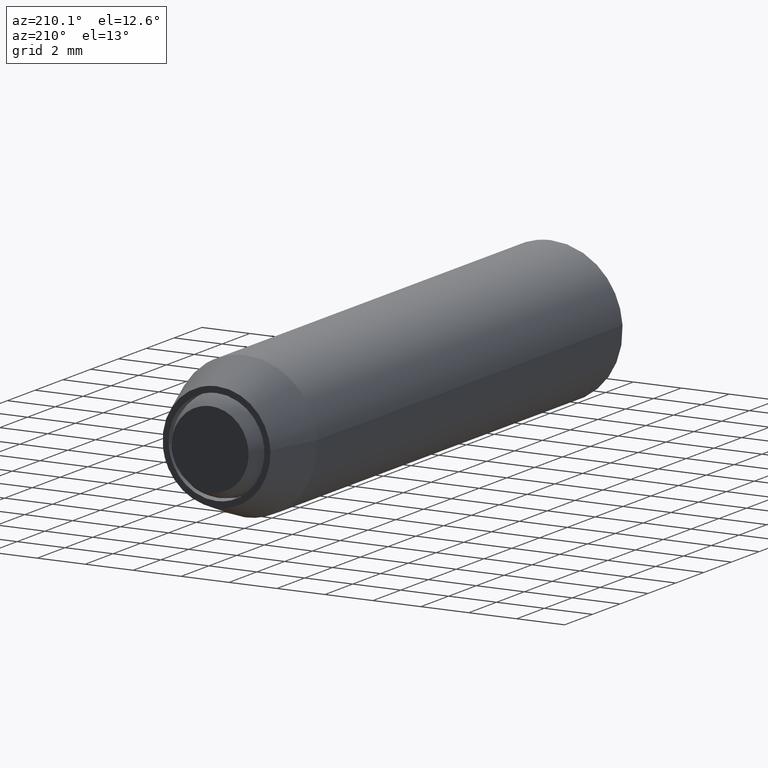
[diagram: clean part render]
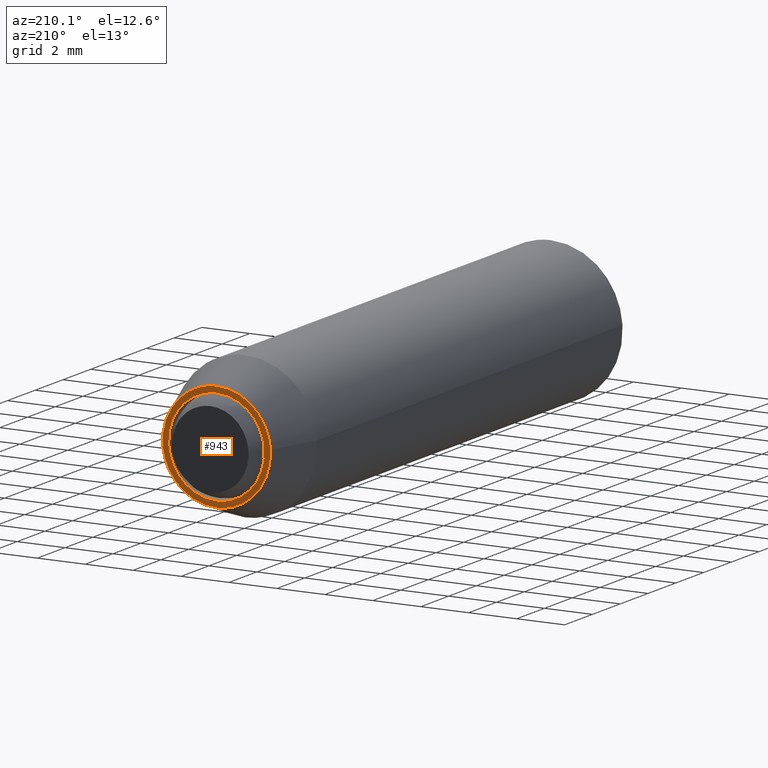
[diagram: same view with one face highlighted and labeled with its STEP entity id]
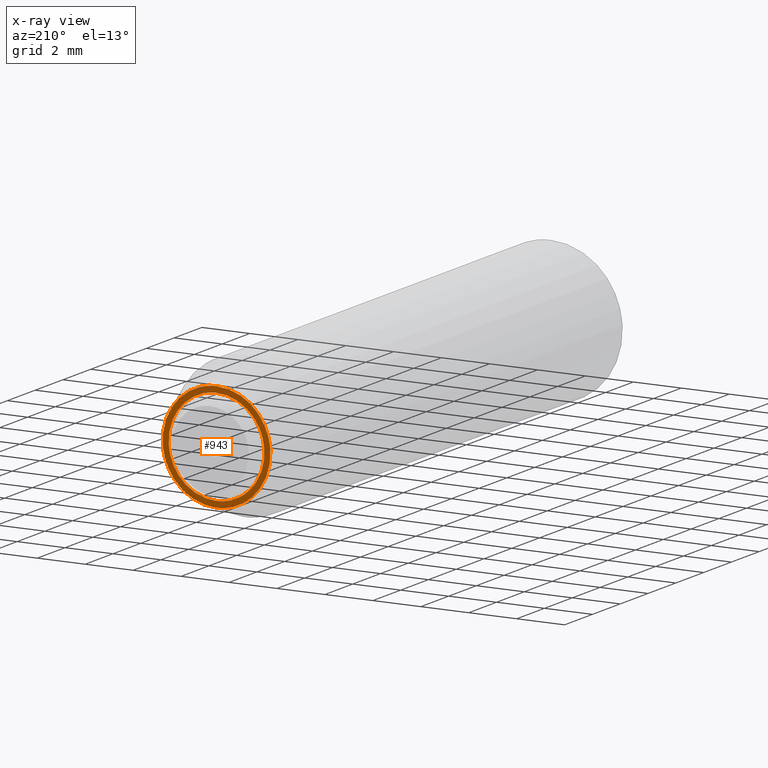
[diagram: x-ray of the same camera — body ghosted, the highlighted face saturated]
A machine part, auxiliary view. The second image highlights one B-rep face of the part: STEP entity #943.
The next image is the same camera in x-ray: the body ghosted, the highlighted face saturated — about 0% of this face is hidden behind the body in this view.
In plain terms, the highlighted face is a freeform B-spline surface patch.
Its self-contained STEP definition (entity closure, byte-faithful):
#100=CARTESIAN_POINT('',(1.996269596843128,1.387779E-016,-0.122097079079622));
#101=VERTEX_POINT('',#100);
#107=CARTESIAN_POINT('',(0.0,0.0,-2.0));
#108=VERTEX_POINT('',#107);
#109=CARTESIAN_POINT('',(0.0,0.0,-2.0));
#110=CARTESIAN_POINT('',(1.881412133792676,0.0,-2.000000000000000));
#111=CARTESIAN_POINT('',(1.996269596843127,1.387779E-016,-0.122097079079622));
#119=(BOUNDED_CURVE()B_SPLINE_CURVE(2,(#109,#110,#111),.UNSPECIFIED.,.F.,.U.)B_SPLINE_CURVE_WITH_KNOTS((3,3),(0.500000000000000,0.739332962240255),.UNSPECIFIED.)CURVE()GEOMETRIC_REPRESENTATION_ITEM()RATIONAL_B_SPLINE_CURVE((1.0,0.719603993285173,0.976072041669530))REPRESENTATION_ITEM(''));
#120=EDGE_CURVE('',#108,#101,#119,.T.);
#122=CARTESIAN_POINT('',(-1.986019052725252,1.419714E-016,0.236068469331022));
#123=VERTEX_POINT('',#122);
#124=CARTESIAN_POINT('',(-1.986019052725252,1.419714E-016,0.236068469331022));
#125=CARTESIAN_POINT('',(-2.0,0.0,0.118448239321510));
#126=CARTESIAN_POINT('',(-2.0,0.0,0.0));
#127=CARTESIAN_POINT('',(-2.000000000000000,0.0,-2.000000000000000));
#128=CARTESIAN_POINT('',(0.0,0.0,-2.0));
#136=(BOUNDED_CURVE()B_SPLINE_CURVE(2,(#124,#125,#126,#127,#128),.UNSPECIFIED.,.F.,.U.)B_SPLINE_CURVE_WITH_KNOTS((3,2,3),(0.229562473512665,0.250000000000000,0.500000000000000),.UNSPECIFIED.)CURVE()GEOMETRIC_REPRESENTATION_ITEM()RATIONAL_B_SPLINE_CURVE((0.956026754182046,0.976055948330157,1.0,0.707106781186548,1.0))REPRESENTATION_ITEM(''));
#137=EDGE_CURVE('',#123,#108,#136,.T.);
#181=CARTESIAN_POINT('',(0.0,0.0,2.0));
#182=VERTEX_POINT('',#181);
#183=CARTESIAN_POINT('',(0.0,0.0,2.0));
#184=CARTESIAN_POINT('',(-1.776349051871201,0.0,2.0));
#185=CARTESIAN_POINT('',(-1.986019052725252,1.419714E-016,0.236068469331022));
#193=(BOUNDED_CURVE()B_SPLINE_CURVE(2,(#183,#184,#185),.UNSPECIFIED.,.F.,.U.)B_SPLINE_CURVE_WITH_KNOTS((3,3),(0.0,0.229562473512665),.UNSPECIFIED.)CURVE()GEOMETRIC_REPRESENTATION_ITEM()RATIONAL_B_SPLINE_CURVE((1.0,0.731050832856391,0.956026754182046))REPRESENTATION_ITEM(''));
#194=EDGE_CURVE('',#182,#123,#193,.T.);
#196=CARTESIAN_POINT('',(1.996269596843128,1.387779E-016,-0.122097079079622));
#197=CARTESIAN_POINT('',(2.000000000000000,0.0,-0.061105526607113));
#198=CARTESIAN_POINT('',(2.0,0.0,0.0));
#199=CARTESIAN_POINT('',(2.000000000000000,0.0,2.000000000000000));
#200=CARTESIAN_POINT('',(0.0,0.0,2.0));
#208=(BOUNDED_CURVE()B_SPLINE_CURVE(2,(#196,#197,#198,#199,#200),.UNSPECIFIED.,.F.,.U.)B_SPLINE_CURVE_WITH_KNOTS((3,2,3),(0.739332962240256,0.750000000000000,1.0),.UNSPECIFIED.)CURVE()GEOMETRIC_REPRESENTATION_ITEM()RATIONAL_B_SPLINE_CURVE((0.976072041669531,0.987502787901375,1.0,0.707106781186548,1.0))REPRESENTATION_ITEM(''));
#209=EDGE_CURVE('',#101,#182,#208,.T.);
#608=CARTESIAN_POINT('',(2.234271434317917,-1.242690E-012,-0.265577027984335));
#609=VERTEX_POINT('',#608);
#615=CARTESIAN_POINT('',(0.0,0.0,2.250000000000000));
#616=VERTEX_POINT('',#615);
#617=CARTESIAN_POINT('',(2.234271434317918,-1.242690E-012,-0.265577027984335));
#618=CARTESIAN_POINT('',(2.250000000000000,0.0,-0.133254269223442));
#619=CARTESIAN_POINT('',(2.250000000000000,0.0,-1.683834E-016));
#620=CARTESIAN_POINT('',(2.250000000000000,0.0,2.250000000000000));
#621=CARTESIAN_POINT('',(0.0,0.0,2.250000000000000));
#629=(BOUNDED_CURVE()B_SPLINE_CURVE(2,(#617,#618,#619,#620,#621),.UNSPECIFIED.,.F.,.U.)B_SPLINE_CURVE_WITH_KNOTS((3,2,3),(0.229562473514650,0.250000000000000,0.500000000000000),.UNSPECIFIED.)CURVE()GEOMETRIC_REPRESENTATION_ITEM()RATIONAL_B_SPLINE_CURVE((0.956026754185936,0.976055948332482,1.0,0.707106781186547,1.0))REPRESENTATION_ITEM(''));
#630=EDGE_CURVE('',#609,#616,#629,.T.);
#632=CARTESIAN_POINT('',(-2.245803296449272,-2.405406E-012,0.137359213966598));
#633=VERTEX_POINT('',#632);
#634=CARTESIAN_POINT('',(0.0,0.0,2.250000000000000));
#635=CARTESIAN_POINT('',(-2.116588650513048,0.0,2.250000000000000));
#636=CARTESIAN_POINT('',(-2.245803296449272,-2.405406E-012,0.137359213966598));
#644=(BOUNDED_CURVE()B_SPLINE_CURVE(2,(#634,#635,#636),.UNSPECIFIED.,.F.,.U.)B_SPLINE_CURVE_WITH_KNOTS((3,3),(0.500000000000000,0.739332962239953),.UNSPECIFIED.)CURVE()GEOMETRIC_REPRESENTATION_ITEM()RATIONAL_B_SPLINE_CURVE((1.0,0.719603993285526,0.976072041668883))REPRESENTATION_ITEM(''));
#645=EDGE_CURVE('',#616,#633,#644,.T.);
#678=CARTESIAN_POINT('',(0.0,0.0,-2.250000000000000));
#679=VERTEX_POINT('',#678);
#680=CARTESIAN_POINT('',(-2.245803296449272,-2.405406E-012,0.137359213966598));
#681=CARTESIAN_POINT('',(-2.250000000000000,0.0,0.068743717434978));
#682=CARTESIAN_POINT('',(-2.250000000000000,0.0,-1.683834E-016));
#683=CARTESIAN_POINT('',(-2.250000000000000,0.0,-2.250000000000000));
#684=CARTESIAN_POINT('',(0.0,0.0,-2.250000000000000));
#692=(BOUNDED_CURVE()B_SPLINE_CURVE(2,(#680,#681,#682,#683,#684),.UNSPECIFIED.,.F.,.U.)B_SPLINE_CURVE_WITH_KNOTS((3,2,3),(0.739332962239953,0.750000000000000,1.0),.UNSPECIFIED.)CURVE()GEOMETRIC_REPRESENTATION_ITEM()RATIONAL_B_SPLINE_CURVE((0.976072041668882,0.987502787901021,1.0,0.707106781186547,1.0))REPRESENTATION_ITEM(''));
#693=EDGE_CURVE('',#633,#679,#692,.T.);
#695=CARTESIAN_POINT('',(0.0,0.0,-2.250000000000000));
#696=CARTESIAN_POINT('',(1.998392683378732,0.0,-2.250000000000000));
#697=CARTESIAN_POINT('',(2.234271434317918,-1.242690E-012,-0.265577027984335));
#705=(BOUNDED_CURVE()B_SPLINE_CURVE(2,(#695,#696,#697),.UNSPECIFIED.,.F.,.U.)B_SPLINE_CURVE_WITH_KNOTS((3,3),(0.0,0.229562473514650),.UNSPECIFIED.)CURVE()GEOMETRIC_REPRESENTATION_ITEM()RATIONAL_B_SPLINE_CURVE((1.0,0.731050832854065,0.956026754185936))REPRESENTATION_ITEM(''));
#706=EDGE_CURVE('',#679,#609,#705,.T.);
#926=CARTESIAN_POINT('',(-2.474720355006343,0.0,2.474774991278127));
#927=CARTESIAN_POINT('',(-2.474720355006343,0.0,-2.474775111977532));
#928=CARTESIAN_POINT('',(2.474734074505454,0.0,2.474774991278127));
#929=CARTESIAN_POINT('',(2.474734074505454,0.0,-2.474775111977532));
#930=B_SPLINE_SURFACE_WITH_KNOTS('',1,1,((#926,#928),(#927,#929)),.UNSPECIFIED.,.F.,.F.,.U.,(2,2),(2,2),(0.0,4.949550103255659),(0.0,4.949454429511796),.UNSPECIFIED.);
#931=ORIENTED_EDGE('',*,*,#693,.F.);
#932=ORIENTED_EDGE('',*,*,#645,.F.);
#933=ORIENTED_EDGE('',*,*,#630,.F.);
#934=ORIENTED_EDGE('',*,*,#706,.F.);
#935=EDGE_LOOP('',(#931,#932,#933,#934));
#936=FACE_OUTER_BOUND('',#935,.T.);
#937=ORIENTED_EDGE('',*,*,#120,.T.);
#938=ORIENTED_EDGE('',*,*,#209,.T.);
#939=ORIENTED_EDGE('',*,*,#194,.T.);
#940=ORIENTED_EDGE('',*,*,#137,.T.);
#941=EDGE_LOOP('',(#937,#938,#939,#940));
#942=FACE_BOUND('',#941,.T.);
#943=ADVANCED_FACE('',(#936,#942),#930,.F.);